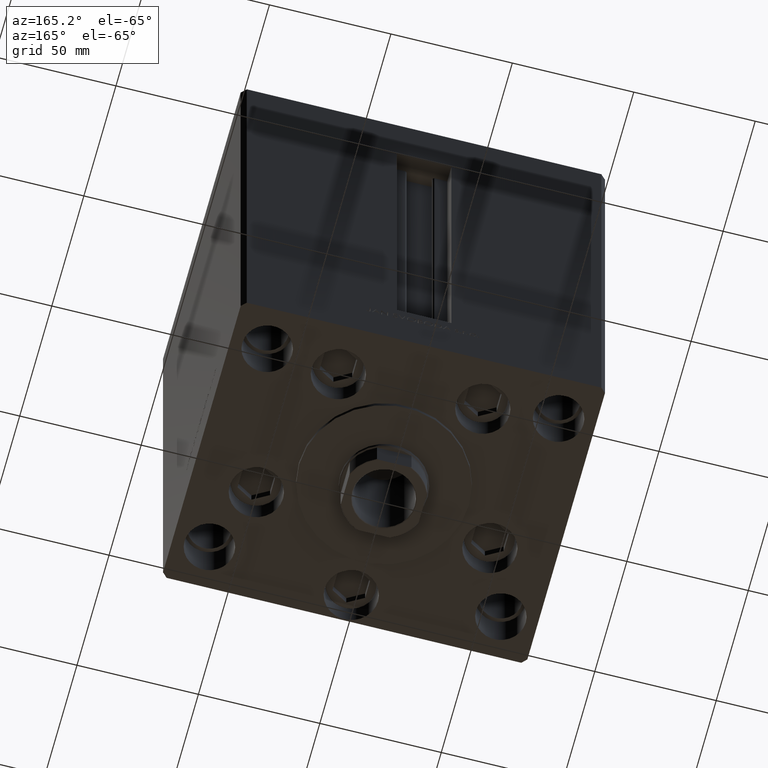
[diagram: clean part render]
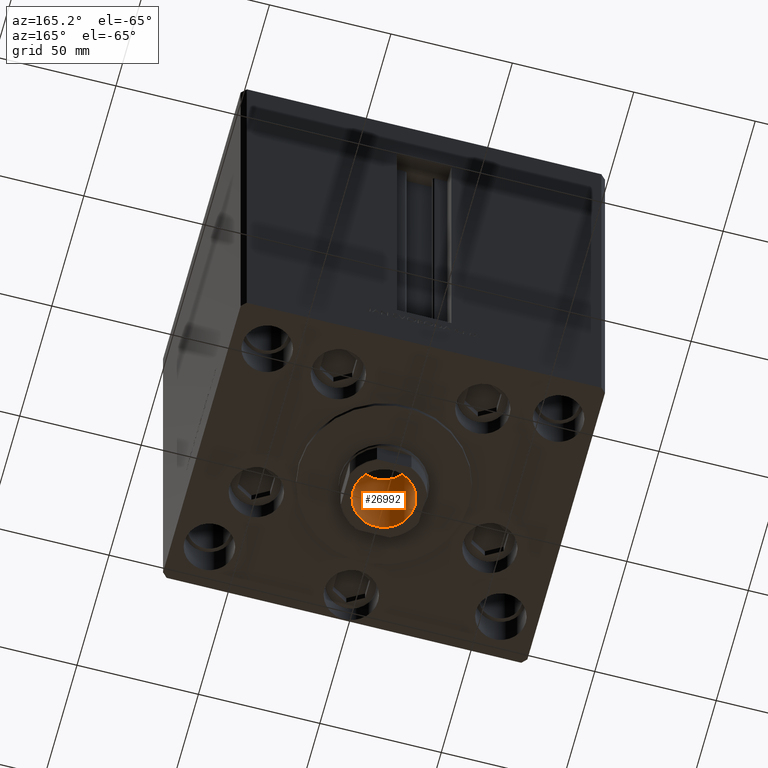
[diagram: same view with one face highlighted and labeled with its STEP entity id]
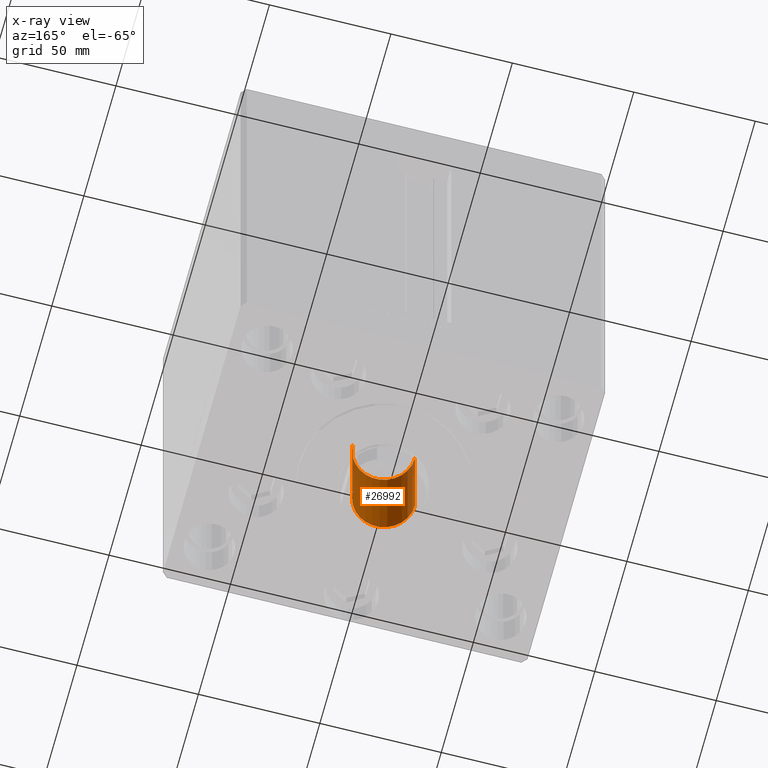
[diagram: x-ray of the same camera — body ghosted, the highlighted face saturated]
A machine part, auxiliary view. The second image highlights one B-rep face of the part: STEP entity #26992.
The next image is the same camera in x-ray: the body ghosted, the highlighted face saturated — about 8% of this face is hidden behind the body in this view.
In plain terms, the highlighted cylindrical surface (edge-blend (fillet) strip) has radius 12.75 mm, axis along (0, 0, -1).
Its self-contained STEP definition (entity closure, byte-faithful):
#1366 = CARTESIAN_POINT ( 'NONE',  ( 0.000000000000000000, 0.000000000000000000, 182.5000000000000284 ) ) ;
#1715 = VECTOR ( 'NONE', #42986, 1000.000000000000000 ) ;
#2406 = EDGE_CURVE ( 'NONE', #15813, #26222, #18078, .T. ) ;
#6876 = EDGE_CURVE ( 'NONE', #15813, #7190, #43954, .T. ) ;
#7190 = VERTEX_POINT ( 'NONE', #40254 ) ;
#8556 = CARTESIAN_POINT ( 'NONE',  ( -12.74999999999999112, 1.561424668912874125E-15, 137.5000000000000000 ) ) ;
#9367 = DIRECTION ( 'NONE',  ( 0.000000000000000000, 0.000000000000000000, 1.000000000000000000 ) ) ;
#9656 = ORIENTED_EDGE ( 'NONE', *, *, #2406, .F. ) ;
#9828 = CARTESIAN_POINT ( 'NONE',  ( -12.74999999999999467, 1.561424668912874519E-15, 182.5000000000000284 ) ) ;
#10042 = VERTEX_POINT ( 'NONE', #41277 ) ;
#10131 = CIRCLE ( 'NONE', #37775, 12.74999999999999467 ) ;
#11359 = DIRECTION ( 'NONE',  ( -0.000000000000000000, -0.000000000000000000, 1.000000000000000000 ) ) ;
#11378 = ORIENTED_EDGE ( 'NONE', *, *, #6876, .T. ) ;
#12512 = CYLINDRICAL_SURFACE ( 'NONE', #34273, 12.74999999999999467 ) ;
#14353 = VECTOR ( 'NONE', #17004, 1000.000000000000000 ) ;
#15813 = VERTEX_POINT ( 'NONE', #8556 ) ;
#16473 = DIRECTION ( 'NONE',  ( -0.000000000000000000, -0.000000000000000000, 1.000000000000000000 ) ) ;
#17004 = DIRECTION ( 'NONE',  ( -0.000000000000000000, -0.000000000000000000, 1.000000000000000000 ) ) ;
#17545 = CARTESIAN_POINT ( 'NONE',  ( 0.000000000000000000, 0.000000000000000000, 182.2000000000000171 ) ) ;
#18078 = CIRCLE ( 'NONE', #34673, 12.74999999999999112 ) ;
#18557 = CARTESIAN_POINT ( 'NONE',  ( 0.000000000000000000, 0.000000000000000000, 137.5000000000000000 ) ) ;
#20974 = CARTESIAN_POINT ( 'NONE',  ( 12.74999999999999467, 0.000000000000000000, 182.5000000000000284 ) ) ;
#21629 = EDGE_CURVE ( 'NONE', #26222, #10042, #43947, .T. ) ;
#26222 = VERTEX_POINT ( 'NONE', #33030 ) ;
#26992 = ADVANCED_FACE ( 'NONE', ( #32058 ), #12512, .F. ) ;
#27940 = DIRECTION ( 'NONE',  ( 1.000000000000000000, 0.000000000000000000, 0.000000000000000000 ) ) ;
#32058 = FACE_OUTER_BOUND ( 'NONE', #48063, .T. ) ;
#33030 = CARTESIAN_POINT ( 'NONE',  ( 12.74999999999999112, 0.000000000000000000, 137.5000000000000000 ) ) ;
#34273 = AXIS2_PLACEMENT_3D ( 'NONE', #1366, #16473, #39230 ) ;
#34673 = AXIS2_PLACEMENT_3D ( 'NONE', #18557, #11359, #37849 ) ;
#37775 = AXIS2_PLACEMENT_3D ( 'NONE', #17545, #9367, #27940 ) ;
#37849 = DIRECTION ( 'NONE',  ( 1.000000000000000000, 0.000000000000000000, 0.000000000000000000 ) ) ;
#39230 = DIRECTION ( 'NONE',  ( 1.000000000000000000, 0.000000000000000000, 0.000000000000000000 ) ) ;
#40254 = CARTESIAN_POINT ( 'NONE',  ( -12.74999999999999467, 1.561424668912874519E-15, 182.2000000000000171 ) ) ;
#41277 = CARTESIAN_POINT ( 'NONE',  ( 12.74999999999999467, 0.000000000000000000, 182.2000000000000171 ) ) ;
#42554 = ORIENTED_EDGE ( 'NONE', *, *, #21629, .F. ) ;
#42986 = DIRECTION ( 'NONE',  ( -0.000000000000000000, -0.000000000000000000, 1.000000000000000000 ) ) ;
#43947 = LINE ( 'NONE', #20974, #14353 ) ;
#43954 = LINE ( 'NONE', #9828, #1715 ) ;
#47073 = ORIENTED_EDGE ( 'NONE', *, *, #48469, .T. ) ;
#48063 = EDGE_LOOP ( 'NONE', ( #9656, #11378, #47073, #42554 ) ) ;
#48469 = EDGE_CURVE ( 'NONE', #7190, #10042, #10131, .T. ) ;